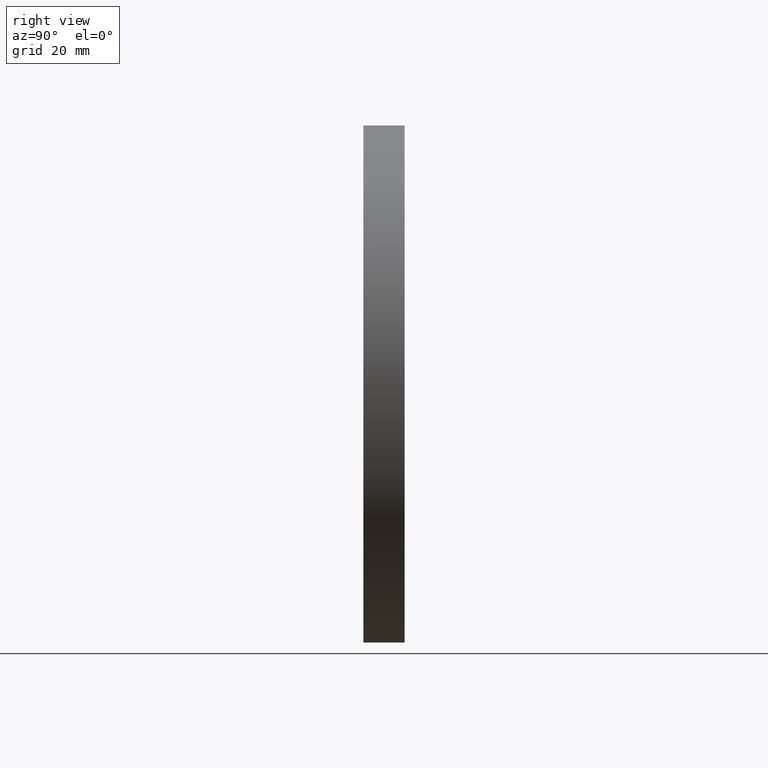
[diagram: clean part render]
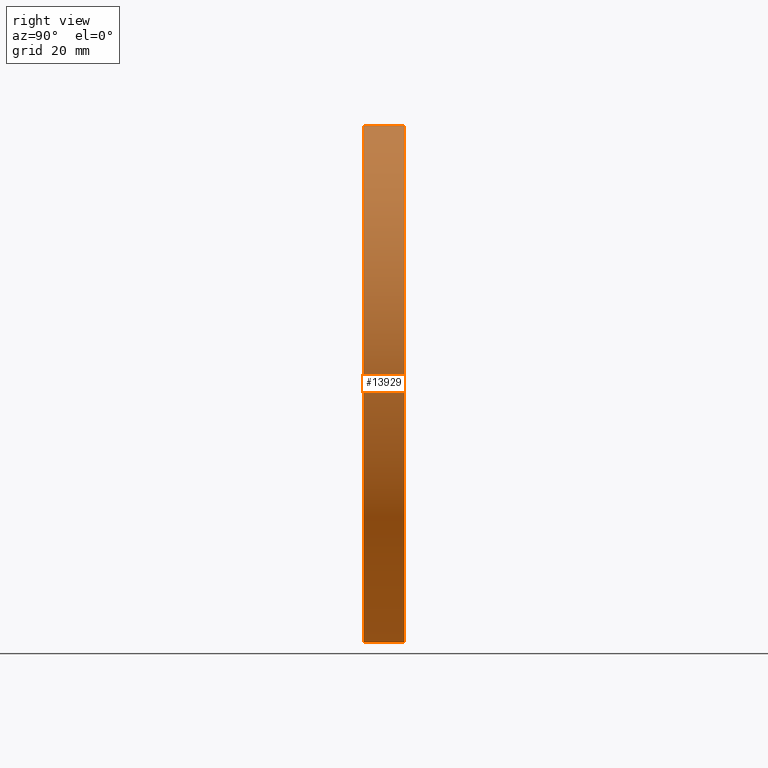
[diagram: same view with one face highlighted and labeled with its STEP entity id]
A machine part, right view. The second image highlights one B-rep face of the part: STEP entity #13929.
In plain terms, the highlighted cylindrical surface (partial cylindrical patch) has radius 50 mm, axis along (-0, -1, -0).
Its self-contained STEP definition (entity closure, byte-faithful):
#785 = AXIS2_PLACEMENT_3D ( 'NONE', #10248, #13294, #10117 ) ;
#848 = VERTEX_POINT ( 'NONE', #5496 ) ;
#1815 = CIRCLE ( 'NONE', #785, 50.00000000000000000 ) ;
#1990 = LINE ( 'NONE', #13539, #13159 ) ;
#2784 = AXIS2_PLACEMENT_3D ( 'NONE', #3573, #4902, #11514 ) ;
#3573 = CARTESIAN_POINT ( 'NONE',  ( 0.000000000000000000, 8.000000000000000000, 0.000000000000000000 ) ) ;
#4068 = CYLINDRICAL_SURFACE ( 'NONE', #2784, 50.00000000000000000 ) ;
#4092 = ORIENTED_EDGE ( 'NONE', *, *, #7453, .T. ) ;
#4518 = CARTESIAN_POINT ( 'NONE',  ( 0.000000000000000000, 8.000000000000000000, -50.00000000000000000 ) ) ;
#4902 = DIRECTION ( 'NONE',  ( -0.000000000000000000, -1.000000000000000000, -0.000000000000000000 ) ) ;
#5496 = CARTESIAN_POINT ( 'NONE',  ( 0.000000000000000000, 0.000000000000000000, -50.00000000000000000 ) ) ;
#5776 = EDGE_LOOP ( 'NONE', ( #10645, #4092, #11878, #13193 ) ) ;
#6004 = CARTESIAN_POINT ( 'NONE',  ( 6.123233995736766085E-15, 8.000000000000000000, 50.00000000000000000 ) ) ;
#6018 = VECTOR ( 'NONE', #10389, 1000.000000000000000 ) ;
#7453 = EDGE_CURVE ( 'NONE', #8075, #12424, #9235, .T. ) ;
#8075 = VERTEX_POINT ( 'NONE', #12149 ) ;
#8513 = DIRECTION ( 'NONE',  ( -0.000000000000000000, -1.000000000000000000, -0.000000000000000000 ) ) ;
#8765 = DIRECTION ( 'NONE',  ( 0.000000000000000000, 0.000000000000000000, 1.000000000000000000 ) ) ;
#8831 = FACE_OUTER_BOUND ( 'NONE', #5776, .T. ) ;
#8856 = DIRECTION ( 'NONE',  ( 0.000000000000000000, 1.000000000000000000, 0.000000000000000000 ) ) ;
#9235 = LINE ( 'NONE', #6004, #6018 ) ;
#9892 = EDGE_CURVE ( 'NONE', #8075, #12234, #1815, .T. ) ;
#10117 = DIRECTION ( 'NONE',  ( 0.000000000000000000, 0.000000000000000000, 1.000000000000000000 ) ) ;
#10248 = CARTESIAN_POINT ( 'NONE',  ( 0.000000000000000000, 8.000000000000000000, 0.000000000000000000 ) ) ;
#10344 = EDGE_CURVE ( 'NONE', #12234, #848, #1990, .T. ) ;
#10389 = DIRECTION ( 'NONE',  ( -0.000000000000000000, -1.000000000000000000, -0.000000000000000000 ) ) ;
#10645 = ORIENTED_EDGE ( 'NONE', *, *, #9892, .F. ) ;
#11372 = CIRCLE ( 'NONE', #11377, 50.00000000000000000 ) ;
#11377 = AXIS2_PLACEMENT_3D ( 'NONE', #13121, #8856, #8765 ) ;
#11424 = EDGE_CURVE ( 'NONE', #12424, #848, #11372, .T. ) ;
#11514 = DIRECTION ( 'NONE',  ( 0.000000000000000000, 0.000000000000000000, -1.000000000000000000 ) ) ;
#11878 = ORIENTED_EDGE ( 'NONE', *, *, #11424, .T. ) ;
#12149 = CARTESIAN_POINT ( 'NONE',  ( 6.123233995736766085E-15, 8.000000000000000000, 50.00000000000000000 ) ) ;
#12234 = VERTEX_POINT ( 'NONE', #4518 ) ;
#12424 = VERTEX_POINT ( 'NONE', #12523 ) ;
#12523 = CARTESIAN_POINT ( 'NONE',  ( 6.123233995736766085E-15, 0.000000000000000000, 50.00000000000000000 ) ) ;
#13121 = CARTESIAN_POINT ( 'NONE',  ( 0.000000000000000000, 0.000000000000000000, 0.000000000000000000 ) ) ;
#13159 = VECTOR ( 'NONE', #8513, 1000.000000000000000 ) ;
#13193 = ORIENTED_EDGE ( 'NONE', *, *, #10344, .F. ) ;
#13294 = DIRECTION ( 'NONE',  ( 0.000000000000000000, 1.000000000000000000, 0.000000000000000000 ) ) ;
#13539 = CARTESIAN_POINT ( 'NONE',  ( 0.000000000000000000, 8.000000000000000000, -50.00000000000000000 ) ) ;
#13929 = ADVANCED_FACE ( 'NONE', ( #8831 ), #4068, .T. ) ;